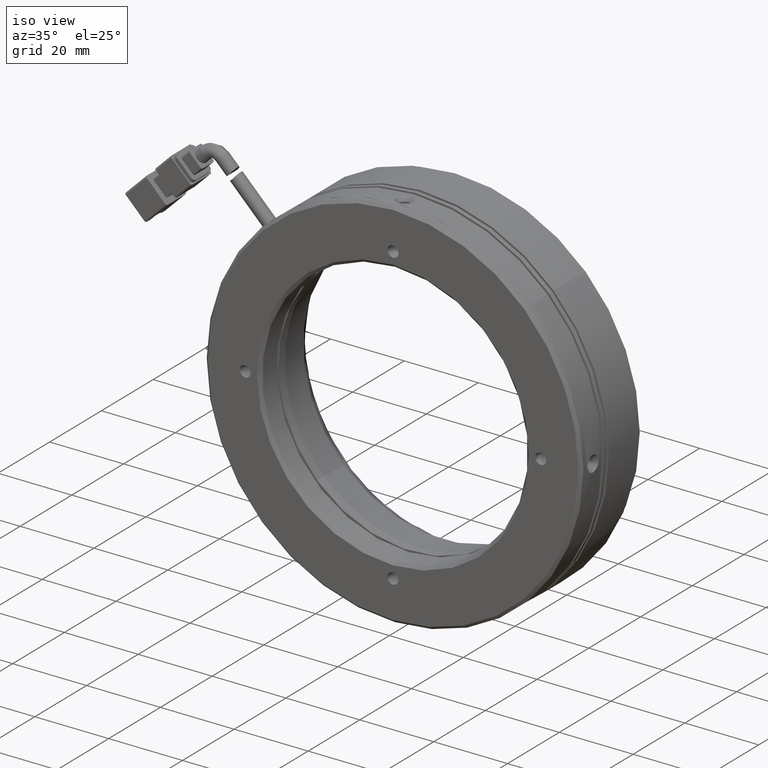
[diagram: clean part render]
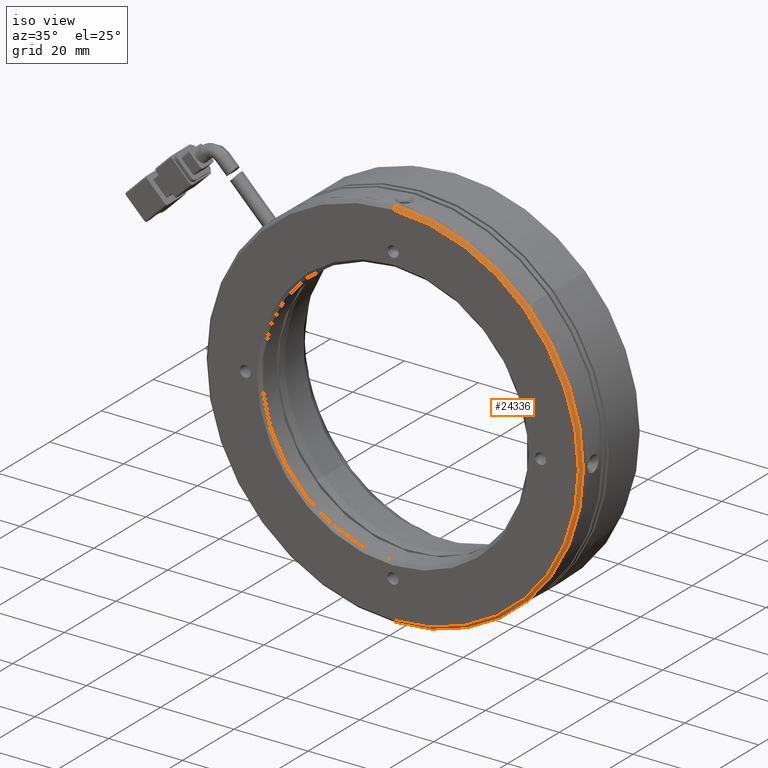
[diagram: same view with one face highlighted and labeled with its STEP entity id]
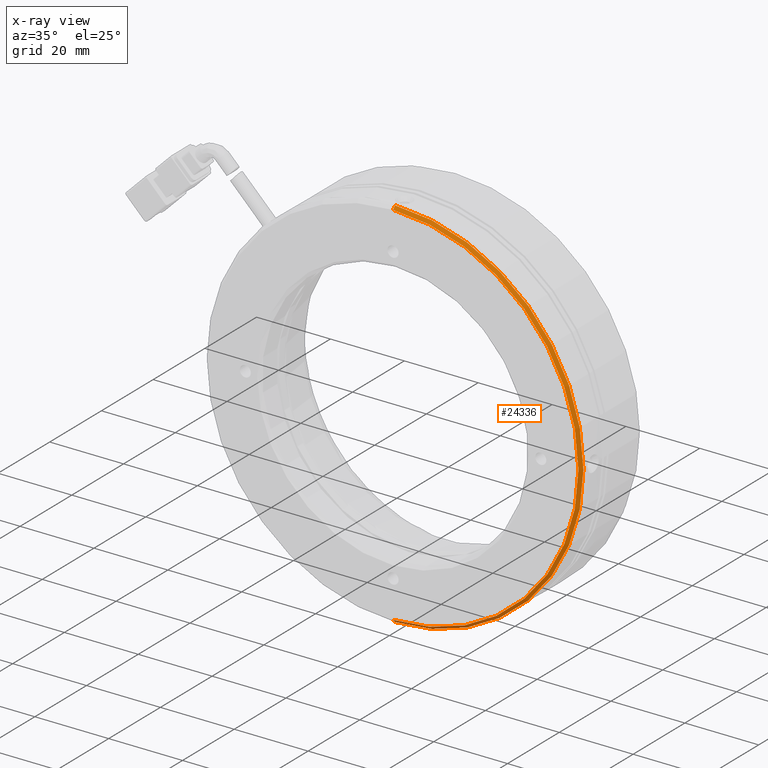
[diagram: x-ray of the same camera — body ghosted, the highlighted face saturated]
A machine part, iso view. The second image highlights one B-rep face of the part: STEP entity #24336.
The next image is the same camera in x-ray: the body ghosted, the highlighted face saturated — about 0% of this face is hidden behind the body in this view.
In plain terms, the highlighted conical surface has half-angle 45 deg.
Its self-contained STEP definition (entity closure, byte-faithful):
#2139 = CARTESIAN_POINT ( 'NONE',  ( 6.245698675651502000E-015, 2.207147174518524000, 51.00000000000000700 ) ) ;
#3379 = VERTEX_POINT ( 'NONE', #74449 ) ;
#3722 = DIRECTION ( 'NONE',  ( 0.0000000000000000000, 1.000000000000000000, 0.0000000000000000000 ) ) ;
#5650 = CARTESIAN_POINT ( 'NONE',  ( 0.0000000000000000000, 1.407147174518515100, 50.19999999999999600 ) ) ;
#9092 = CONICAL_SURFACE ( 'NONE', #29643, 51.00000000000000000, 0.7853981633974432800 ) ;
#10425 = EDGE_CURVE ( 'NONE', #67865, #3379, #27824, .T. ) ;
#11003 = CARTESIAN_POINT ( 'NONE',  ( 0.0000000000000000000, 2.207147174518522700, 0.0000000000000000000 ) ) ;
#15831 = LINE ( 'NONE', #60017, #90849 ) ;
#17424 = CARTESIAN_POINT ( 'NONE',  ( 0.0000000000000000000, 2.207147174518522700, 51.00000000000000000 ) ) ;
#18996 = LINE ( 'NONE', #17424, #93983 ) ;
#24336 = ADVANCED_FACE ( 'NONE', ( #73916 ), #9092, .T. ) ;
#25090 = EDGE_CURVE ( 'NONE', #34384, #76513, #63892, .T. ) ;
#27824 = CIRCLE ( 'NONE', #81451, 50.19999999999999600 ) ;
#28693 = DIRECTION ( 'NONE',  ( -0.0000000000000000000, -1.000000000000000000, -0.0000000000000000000 ) ) ;
#29643 = AXIS2_PLACEMENT_3D ( 'NONE', #11003, #3722, #40336 ) ;
#30604 = CARTESIAN_POINT ( 'NONE',  ( 0.0000000000000000000, 2.207147174518524000, -51.00000000000000700 ) ) ;
#32078 = DIRECTION ( 'NONE',  ( 0.0000000000000000000, 0.7071067811865511300, 0.7071067811865440200 ) ) ;
#34384 = VERTEX_POINT ( 'NONE', #30604 ) ;
#38695 = DIRECTION ( 'NONE',  ( 0.0000000000000000000, 1.000000000000000000, 0.0000000000000000000 ) ) ;
#39093 = ORIENTED_EDGE ( 'NONE', *, *, #67634, .T. ) ;
#40336 = DIRECTION ( 'NONE',  ( 0.0000000000000000000, 0.0000000000000000000, 1.000000000000000000 ) ) ;
#52088 = EDGE_LOOP ( 'NONE', ( #67766, #39093, #52387, #57549 ) ) ;
#52387 = ORIENTED_EDGE ( 'NONE', *, *, #25090, .T. ) ;
#57549 = ORIENTED_EDGE ( 'NONE', *, *, #91850, .F. ) ;
#60017 = CARTESIAN_POINT ( 'NONE',  ( 6.245698675651500400E-015, 2.207147174518522700, -51.00000000000000000 ) ) ;
#63892 = CIRCLE ( 'NONE', #64357, 51.00000000000000700 ) ;
#64357 = AXIS2_PLACEMENT_3D ( 'NONE', #72184, #28693, #79533 ) ;
#67337 = DIRECTION ( 'NONE',  ( 8.659560562354889700E-017, 0.7071067811865511300, -0.7071067811865440200 ) ) ;
#67634 = EDGE_CURVE ( 'NONE', #3379, #34384, #15831, .T. ) ;
#67766 = ORIENTED_EDGE ( 'NONE', *, *, #10425, .T. ) ;
#67865 = VERTEX_POINT ( 'NONE', #5650 ) ;
#72184 = CARTESIAN_POINT ( 'NONE',  ( 0.0000000000000000000, 2.207147174518524000, 0.0000000000000000000 ) ) ;
#73916 = FACE_OUTER_BOUND ( 'NONE', #52088, .T. ) ;
#74449 = CARTESIAN_POINT ( 'NONE',  ( 6.196712803685607000E-015, 1.407147174518515100, -50.19999999999999600 ) ) ;
#76513 = VERTEX_POINT ( 'NONE', #2139 ) ;
#79533 = DIRECTION ( 'NONE',  ( 0.0000000000000000000, 4.251773225433350400E-017, 1.000000000000000000 ) ) ;
#81451 = AXIS2_PLACEMENT_3D ( 'NONE', #82178, #38695, #89427 ) ;
#82178 = CARTESIAN_POINT ( 'NONE',  ( 0.0000000000000000000, 1.407147174518515100, 0.0000000000000000000 ) ) ;
#89427 = DIRECTION ( 'NONE',  ( 0.0000000000000000000, 0.0000000000000000000, 1.000000000000000000 ) ) ;
#90849 = VECTOR ( 'NONE', #67337, 1000.000000000000000 ) ;
#91850 = EDGE_CURVE ( 'NONE', #67865, #76513, #18996, .T. ) ;
#93983 = VECTOR ( 'NONE', #32078, 1000.000000000000000 ) ;